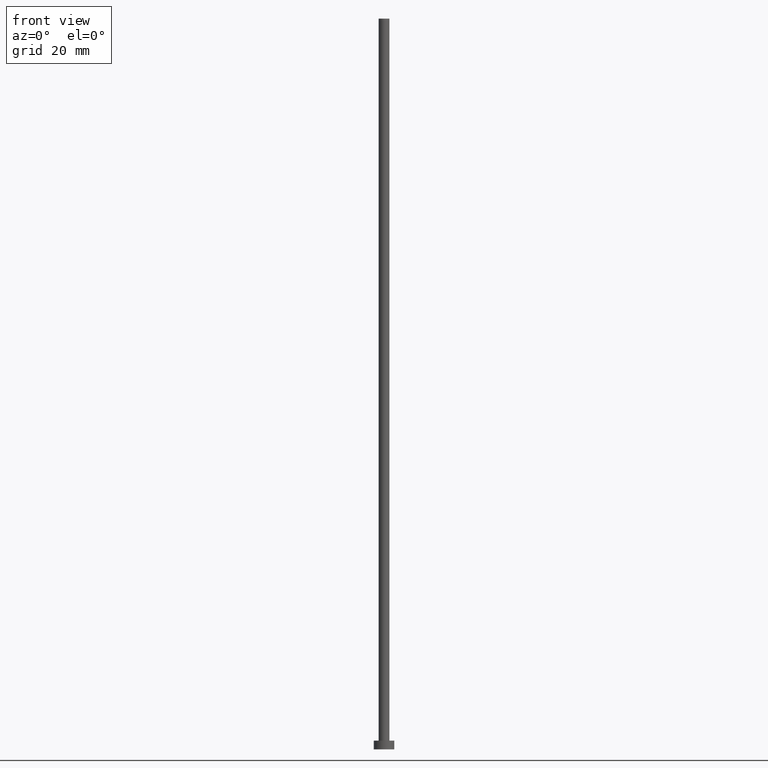
[diagram: clean part render]
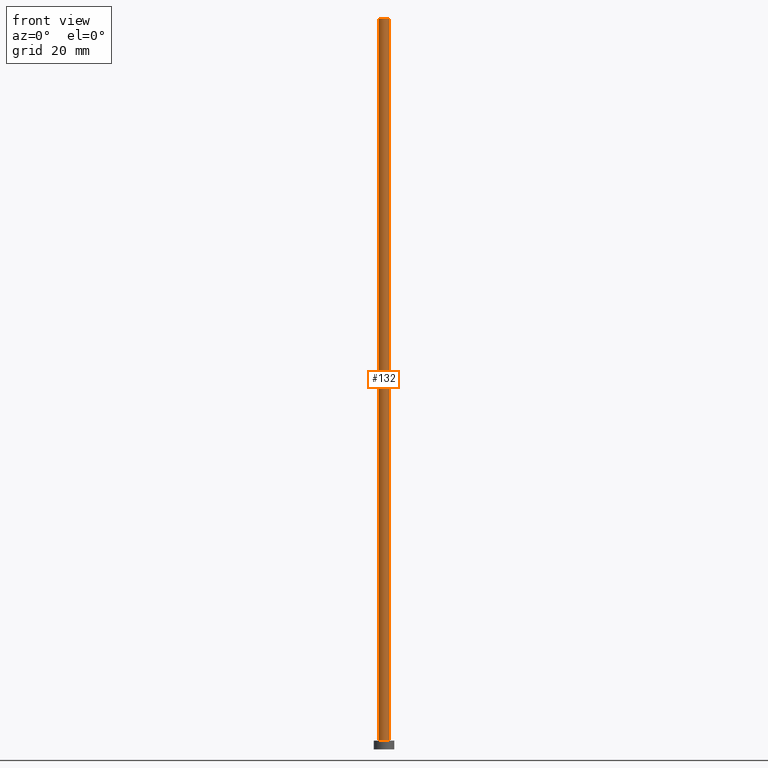
[diagram: same view with one face highlighted and labeled with its STEP entity id]
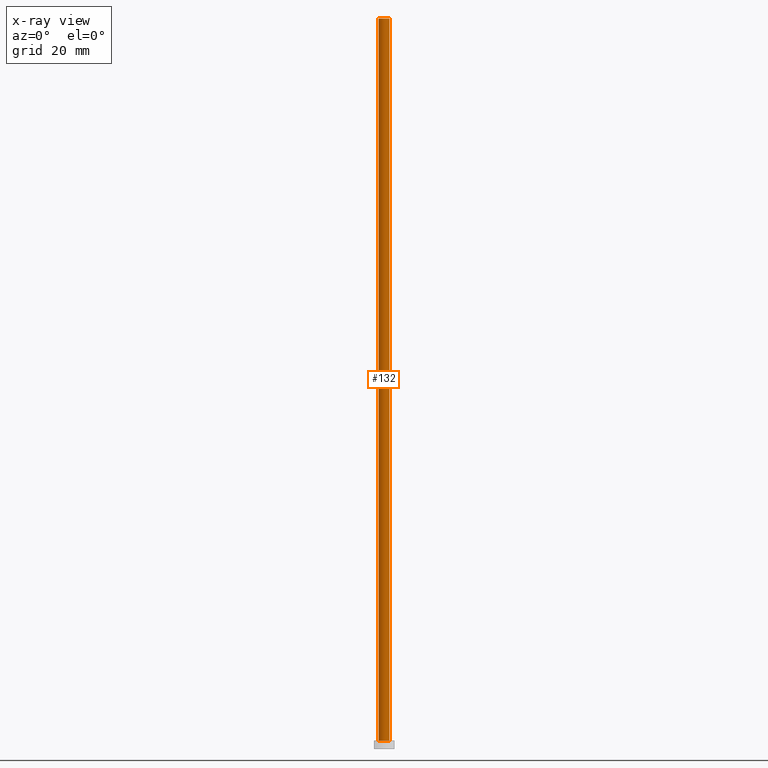
[diagram: x-ray of the same camera — body ghosted, the highlighted face saturated]
A machine part, front view. The second image highlights one B-rep face of the part: STEP entity #132.
The next image is the same camera in x-ray: the body ghosted, the highlighted face saturated — about 0% of this face is hidden behind the body in this view.
In plain terms, the highlighted cylindrical surface (edge-blend (fillet) strip) has radius 1.85 mm, axis along (-0, -0, -1).
Its self-contained STEP definition (entity closure, byte-faithful):
#4 = ORIENTED_EDGE ( 'NONE', *, *, #146, .F. ) ;
#8 = VERTEX_POINT ( 'NONE', #42 ) ;
#13 = CIRCLE ( 'NONE', #117, 1.850000000000000089 ) ;
#17 = VECTOR ( 'NONE', #87, 1000.000000000000000 ) ;
#19 = CARTESIAN_POINT ( 'NONE',  ( -1.850000000000000089, 0.000000000000000000, 250.0000000000000000 ) ) ;
#26 = ORIENTED_EDGE ( 'NONE', *, *, #35, .F. ) ;
#33 = AXIS2_PLACEMENT_3D ( 'NONE', #59, #135, #232 ) ;
#35 = EDGE_CURVE ( 'NONE', #236, #8, #13, .T. ) ;
#42 = CARTESIAN_POINT ( 'NONE',  ( 1.850000000000000089, 2.265596578422603100E-16, 250.0000000000000000 ) ) ;
#44 = DIRECTION ( 'NONE',  ( 0.000000000000000000, 0.000000000000000000, 1.000000000000000000 ) ) ;
#59 = CARTESIAN_POINT ( 'NONE',  ( 0.000000000000000000, 0.000000000000000000, 250.0000000000000000 ) ) ;
#69 = CARTESIAN_POINT ( 'NONE',  ( -1.850000000000000089, 0.000000000000000000, 3.000000000000000000 ) ) ;
#70 = ORIENTED_EDGE ( 'NONE', *, *, #126, .T. ) ;
#77 = DIRECTION ( 'NONE',  ( 1.000000000000000000, 0.000000000000000000, 0.000000000000000000 ) ) ;
#80 = CYLINDRICAL_SURFACE ( 'NONE', #33, 1.850000000000000089 ) ;
#87 = DIRECTION ( 'NONE',  ( -0.000000000000000000, -0.000000000000000000, -1.000000000000000000 ) ) ;
#101 = ORIENTED_EDGE ( 'NONE', *, *, #211, .T. ) ;
#117 = AXIS2_PLACEMENT_3D ( 'NONE', #222, #44, #77 ) ;
#125 = DIRECTION ( 'NONE',  ( 1.000000000000000000, 0.000000000000000000, 0.000000000000000000 ) ) ;
#126 = EDGE_CURVE ( 'NONE', #236, #221, #174, .T. ) ;
#128 = EDGE_LOOP ( 'NONE', ( #4, #26, #70, #101 ) ) ;
#132 = ADVANCED_FACE ( 'NONE', ( #171 ), #80, .T. ) ;
#135 = DIRECTION ( 'NONE',  ( -0.000000000000000000, -0.000000000000000000, -1.000000000000000000 ) ) ;
#146 = EDGE_CURVE ( 'NONE', #8, #203, #223, .T. ) ;
#149 = CARTESIAN_POINT ( 'NONE',  ( 1.850000000000000089, 2.265596578422603100E-16, 3.000000000000000000 ) ) ;
#151 = DIRECTION ( 'NONE',  ( 0.000000000000000000, 0.000000000000000000, 1.000000000000000000 ) ) ;
#167 = CARTESIAN_POINT ( 'NONE',  ( 0.000000000000000000, 0.000000000000000000, 3.000000000000000000 ) ) ;
#170 = AXIS2_PLACEMENT_3D ( 'NONE', #167, #151, #125 ) ;
#171 = FACE_OUTER_BOUND ( 'NONE', #128, .T. ) ;
#174 = LINE ( 'NONE', #19, #200 ) ;
#200 = VECTOR ( 'NONE', #252, 1000.000000000000000 ) ;
#203 = VERTEX_POINT ( 'NONE', #149 ) ;
#206 = CARTESIAN_POINT ( 'NONE',  ( -1.850000000000000089, 0.000000000000000000, 250.0000000000000000 ) ) ;
#211 = EDGE_CURVE ( 'NONE', #221, #203, #235, .T. ) ;
#221 = VERTEX_POINT ( 'NONE', #69 ) ;
#222 = CARTESIAN_POINT ( 'NONE',  ( 0.000000000000000000, 0.000000000000000000, 250.0000000000000000 ) ) ;
#223 = LINE ( 'NONE', #249, #17 ) ;
#232 = DIRECTION ( 'NONE',  ( -1.000000000000000000, 0.000000000000000000, 0.000000000000000000 ) ) ;
#235 = CIRCLE ( 'NONE', #170, 1.850000000000000089 ) ;
#236 = VERTEX_POINT ( 'NONE', #206 ) ;
#249 = CARTESIAN_POINT ( 'NONE',  ( 1.850000000000000089, 2.265596578422603100E-16, 250.0000000000000000 ) ) ;
#252 = DIRECTION ( 'NONE',  ( -0.000000000000000000, -0.000000000000000000, -1.000000000000000000 ) ) ;